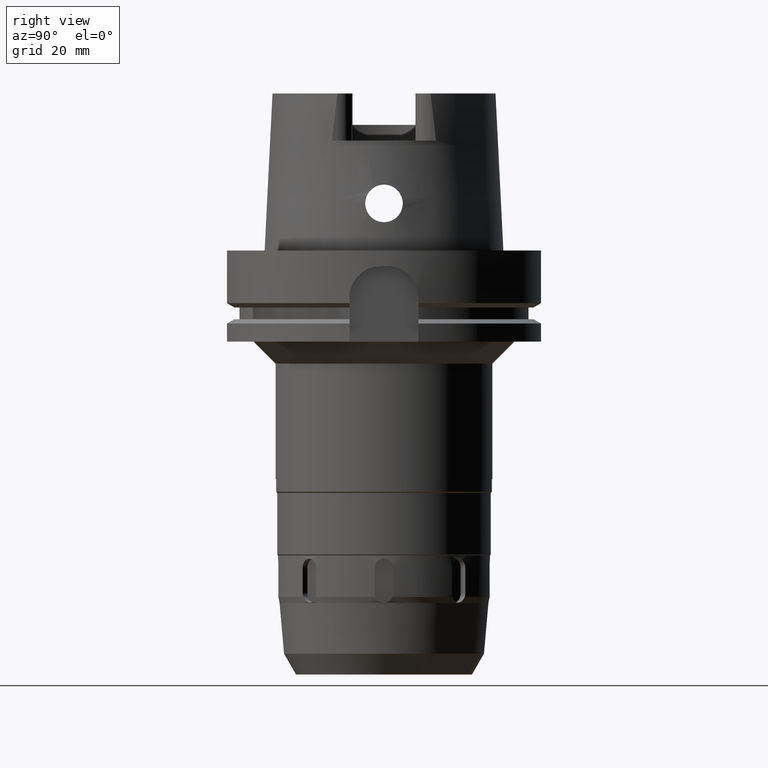
[diagram: clean part render]
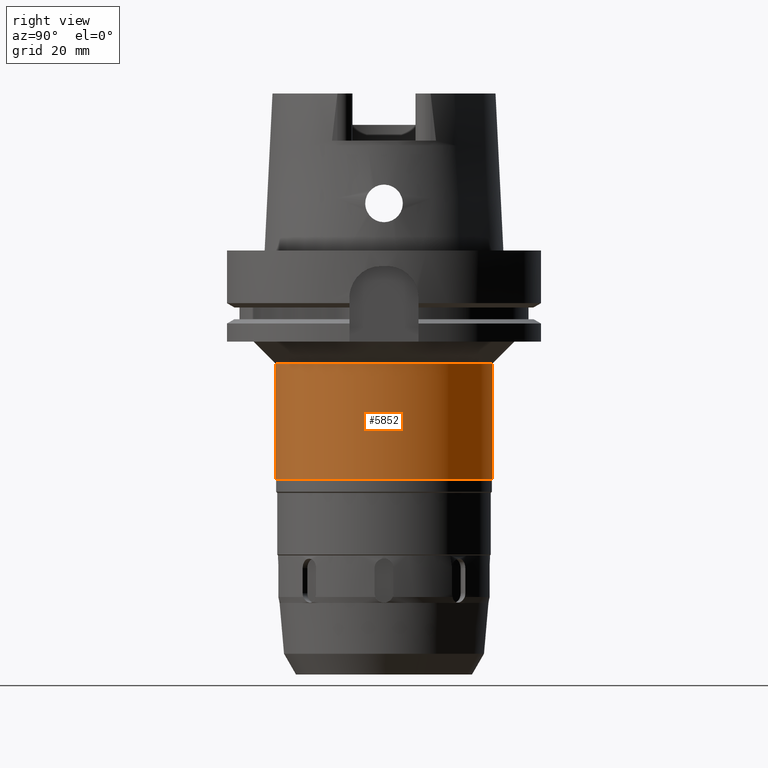
[diagram: same view with one face highlighted and labeled with its STEP entity id]
A machine part, right view. The second image highlights one B-rep face of the part: STEP entity #5852.
In plain terms, the highlighted cylindrical surface (partial cylindrical patch) has radius 34.5 mm, axis along (0, 0, 1).
Its self-contained STEP definition (entity closure, byte-faithful):
#2531=CARTESIAN_POINT('',(0.E0,0.E0,-7.28E1));
#2532=DIRECTION('',(0.E0,0.E0,1.E0));
#2533=DIRECTION('',(0.E0,-1.E0,0.E0));
#2534=AXIS2_PLACEMENT_3D('',#2531,#2532,#2533);
#2563=DIRECTION('',(0.E0,0.E0,-1.E0));
#2564=VECTOR('',#2563,3.68E1);
#2565=CARTESIAN_POINT('',(0.E0,3.45E1,-3.6E1));
#2566=LINE('',#2565,#2564);
#2570=DIRECTION('',(0.E0,0.E0,-1.E0));
#2571=VECTOR('',#2570,3.68E1);
#2572=CARTESIAN_POINT('',(0.E0,-3.45E1,-3.6E1));
#2573=LINE('',#2572,#2571);
#2599=CARTESIAN_POINT('',(0.E0,0.E0,-3.6E1));
#2600=DIRECTION('',(0.E0,0.E0,-1.E0));
#2601=DIRECTION('',(0.E0,1.E0,0.E0));
#2602=AXIS2_PLACEMENT_3D('',#2599,#2600,#2601);
#3933=CARTESIAN_POINT('',(0.E0,-3.45E1,-7.28E1));
#3934=CARTESIAN_POINT('',(0.E0,3.45E1,-7.28E1));
#3935=VERTEX_POINT('',#3933);
#3936=VERTEX_POINT('',#3934);
#3937=CARTESIAN_POINT('',(0.E0,3.45E1,-3.6E1));
#3938=VERTEX_POINT('',#3937);
#3939=CARTESIAN_POINT('',(0.E0,-3.45E1,-3.6E1));
#3940=VERTEX_POINT('',#3939);
#5838=CARTESIAN_POINT('',(0.E0,0.E0,-1.4425E2));
#5839=DIRECTION('',(0.E0,0.E0,1.E0));
#5840=DIRECTION('',(0.E0,1.E0,0.E0));
#5841=AXIS2_PLACEMENT_3D('',#5838,#5839,#5840);
#5842=CYLINDRICAL_SURFACE('',#5841,3.45E1);
#5844=ORIENTED_EDGE('',*,*,#5843,.T.);
#5845=ORIENTED_EDGE('',*,*,#5827,.F.);
#5847=ORIENTED_EDGE('',*,*,#5846,.F.);
#5849=ORIENTED_EDGE('',*,*,#5848,.F.);
#5850=EDGE_LOOP('',(#5844,#5845,#5847,#5849));
#5851=FACE_OUTER_BOUND('',#5850,.F.);
#2535=CIRCLE('',#2534,3.45E1);
#2603=CIRCLE('',#2602,3.45E1);
#5827=EDGE_CURVE('',#3935,#3936,#2535,.T.);
#5843=EDGE_CURVE('',#3938,#3936,#2566,.T.);
#5846=EDGE_CURVE('',#3940,#3935,#2573,.T.);
#5848=EDGE_CURVE('',#3938,#3940,#2603,.T.);
#5852=ADVANCED_FACE('',(#5851),#5842,.T.);